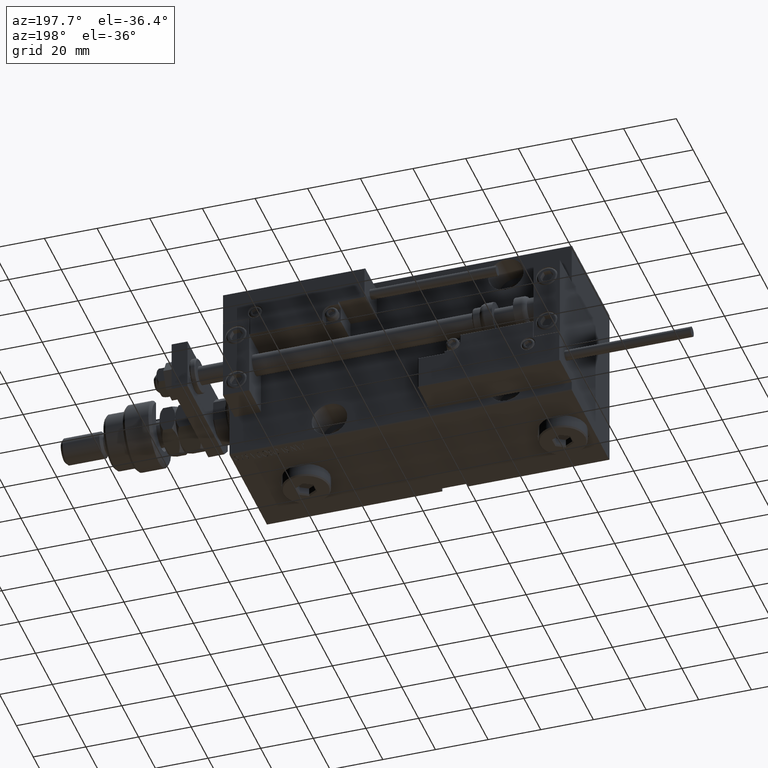
[diagram: clean part render]
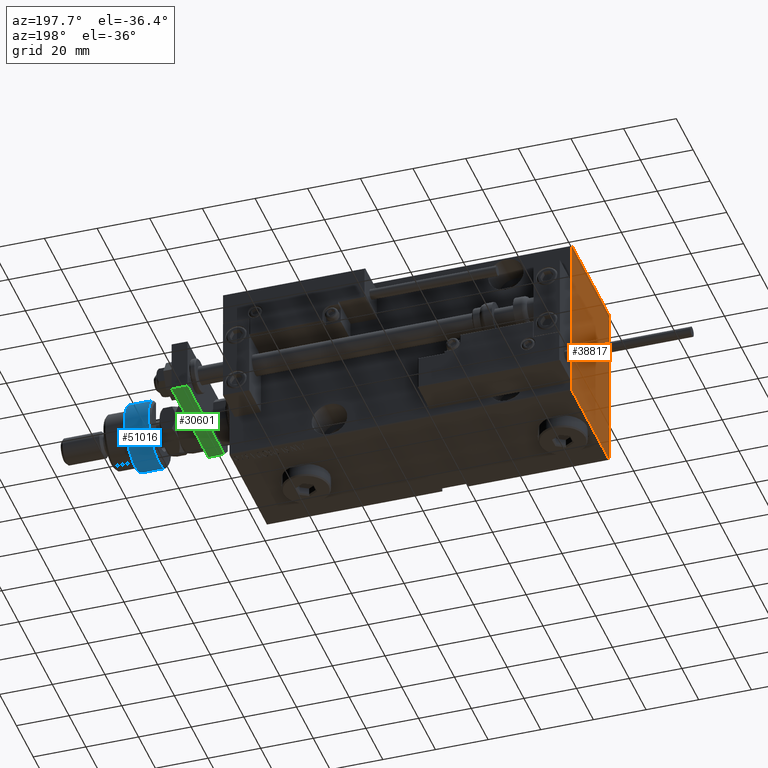
[diagram: same view with three faces highlighted in distinct colors, each labeled with its STEP entity id]
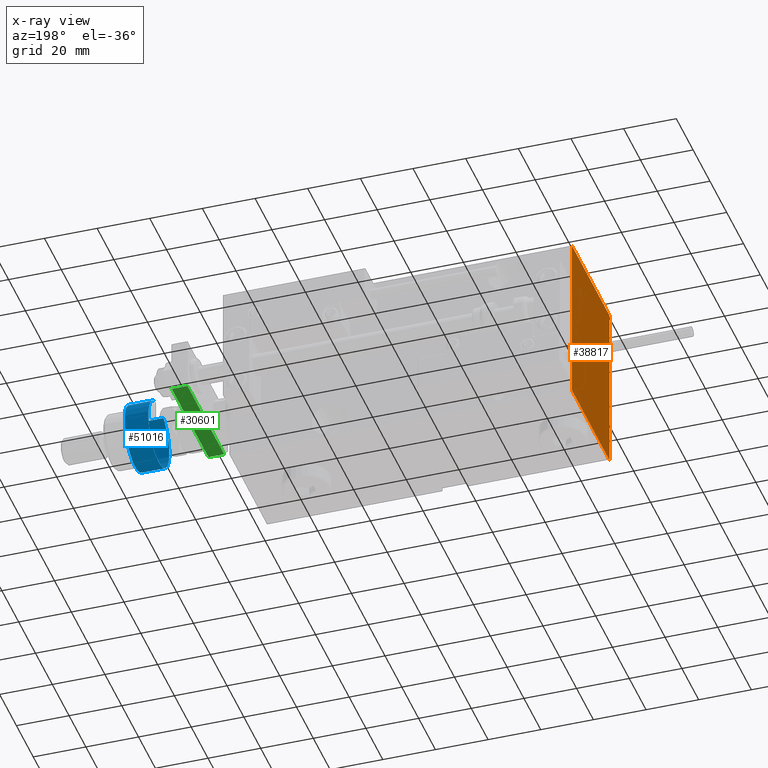
[diagram: x-ray of the same camera — body ghosted, the three highlighted faces saturated]
A machine part, auxiliary view with three faces highlighted in distinct colors.
The next image is the same camera in x-ray (body ghosted, the three faces saturated) — at least one of them is partly hidden behind the body in this view.
Their STEP definitions:

[orange] entity #38817 — the highlighted planar face has unit normal (-1, 0, 0).
#787 = EDGE_CURVE ( 'NONE', #38765, #32417, #31104, .T. ) ;
#1371 = CARTESIAN_POINT ( 'NONE',  ( 130.0000000000000000, -22.19999999999998863, -32.50000000000000000 ) ) ;
#2318 = PLANE ( 'NONE',  #48122 ) ;
#2375 = DIRECTION ( 'NONE',  ( 0.000000000000000000, -1.000000000000000000, -1.541976423090495633E-16 ) ) ;
#2853 = CARTESIAN_POINT ( 'NONE',  ( 130.0000000000000000, -22.49999999999999645, -32.19999999999999574 ) ) ;
#4008 = CARTESIAN_POINT ( 'NONE',  ( 130.0000000000000000, -22.49999999999999645, 32.20000000000001705 ) ) ;
#5311 = VECTOR ( 'NONE', #51495, 1000.000000000000000 ) ;
#5408 = CARTESIAN_POINT ( 'NONE',  ( 130.0000000000000000, -22.49999999999999645, 32.50000000000000000 ) ) ;
#5865 = VECTOR ( 'NONE', #32608, 1000.000000000000114 ) ;
#7787 = ORIENTED_EDGE ( 'NONE', *, *, #38339, .T. ) ;
#8039 = CARTESIAN_POINT ( 'NONE',  ( 130.0000000000000000, 22.49999999999999645, 32.20000000000000284 ) ) ;
#8887 = VERTEX_POINT ( 'NONE', #23152 ) ;
#8923 = LINE ( 'NONE', #50896, #40583 ) ;
#10436 = LINE ( 'NONE', #26624, #35260 ) ;
#11631 = FACE_OUTER_BOUND ( 'NONE', #26770, .T. ) ;
#13311 = DIRECTION ( 'NONE',  ( 0.000000000000000000, -1.067522139062650425E-16, 1.000000000000000000 ) ) ;
#14023 = VECTOR ( 'NONE', #47278, 1000.000000000000114 ) ;
#14766 = VERTEX_POINT ( 'NONE', #44138 ) ;
#14799 = CARTESIAN_POINT ( 'NONE',  ( 130.0000000000000000, -27.35000000000000497, 27.35000000000000497 ) ) ;
#14932 = DIRECTION ( 'NONE',  ( 0.000000000000000000, 0.000000000000000000, -1.000000000000000000 ) ) ;
#16268 = DIRECTION ( 'NONE',  ( 0.000000000000000000, 1.000000000000000000, 0.000000000000000000 ) ) ;
#16492 = CARTESIAN_POINT ( 'NONE',  ( 130.0000000000000000, 22.50000000000000355, -32.19999999999999574 ) ) ;
#16696 = CARTESIAN_POINT ( 'NONE',  ( 130.0000000000000000, -22.19999999999999929, 32.50000000000000000 ) ) ;
#18633 = EDGE_CURVE ( 'NONE', #51504, #31626, #44405, .T. ) ;
#19059 = DIRECTION ( 'NONE',  ( 1.000000000000000000, 0.000000000000000000, 0.000000000000000000 ) ) ;
#20661 = CARTESIAN_POINT ( 'NONE',  ( 130.0000000000000000, -22.49999999999999645, -32.50000000000000000 ) ) ;
#21939 = VERTEX_POINT ( 'NONE', #8039 ) ;
#23152 = CARTESIAN_POINT ( 'NONE',  ( 130.0000000000000000, 22.19999999999998863, 32.50000000000000711 ) ) ;
#23699 = CARTESIAN_POINT ( 'NONE',  ( 130.0000000000000000, 0.000000000000000000, 0.000000000000000000 ) ) ;
#26396 = ORIENTED_EDGE ( 'NONE', *, *, #48049, .T. ) ;
#26624 = CARTESIAN_POINT ( 'NONE',  ( 130.0000000000000000, 27.34999999999974207, 27.35000000000037446 ) ) ;
#26770 = EDGE_LOOP ( 'NONE', ( #40368, #26396, #34043, #43824, #30258, #51390, #7787, #28610 ) ) ;
#28610 = ORIENTED_EDGE ( 'NONE', *, *, #787, .T. ) ;
#30136 = VECTOR ( 'NONE', #54118, 1000.000000000000114 ) ;
#30258 = ORIENTED_EDGE ( 'NONE', *, *, #48811, .T. ) ;
#31104 = LINE ( 'NONE', #47823, #14023 ) ;
#31626 = VERTEX_POINT ( 'NONE', #4008 ) ;
#32284 = VERTEX_POINT ( 'NONE', #16492 ) ;
#32417 = VERTEX_POINT ( 'NONE', #1371 ) ;
#32608 = DIRECTION ( 'NONE',  ( 0.000000000000000000, -0.7071067811865474617, -0.7071067811865474617 ) ) ;
#32791 = VECTOR ( 'NONE', #2375, 1000.000000000000000 ) ;
#34043 = ORIENTED_EDGE ( 'NONE', *, *, #51840, .T. ) ;
#34479 = VECTOR ( 'NONE', #16268, 1000.000000000000000 ) ;
#35260 = VECTOR ( 'NONE', #39780, 1000.000000000000000 ) ;
#37388 = LINE ( 'NONE', #40950, #30136 ) ;
#38339 = EDGE_CURVE ( 'NONE', #31626, #38765, #47906, .T. ) ;
#38765 = VERTEX_POINT ( 'NONE', #2853 ) ;
#38817 = ADVANCED_FACE ( 'NONE', ( #11631 ), #2318, .T. ) ;
#39680 = CARTESIAN_POINT ( 'NONE',  ( 130.0000000000000000, 22.49999999999999645, 32.50000000000000711 ) ) ;
#39780 = DIRECTION ( 'NONE',  ( -0.000000000000000000, -0.7071067811865556774, 0.7071067811865393571 ) ) ;
#39948 = LINE ( 'NONE', #39680, #32791 ) ;
#40368 = ORIENTED_EDGE ( 'NONE', *, *, #48014, .T. ) ;
#40583 = VECTOR ( 'NONE', #13311, 1000.000000000000000 ) ;
#40950 = CARTESIAN_POINT ( 'NONE',  ( 130.0000000000000000, 27.34999999999999432, -27.34999999999999432 ) ) ;
#43824 = ORIENTED_EDGE ( 'NONE', *, *, #52384, .T. ) ;
#44138 = CARTESIAN_POINT ( 'NONE',  ( 130.0000000000000000, 22.19999999999998153, -32.50000000000000000 ) ) ;
#44405 = LINE ( 'NONE', #14799, #5865 ) ;
#47278 = DIRECTION ( 'NONE',  ( -0.000000000000000000, 0.7071067811865474617, -0.7071067811865474617 ) ) ;
#47823 = CARTESIAN_POINT ( 'NONE',  ( 130.0000000000000000, -27.34999999999999076, -27.34999999999999076 ) ) ;
#47906 = LINE ( 'NONE', #5408, #5311 ) ;
#48014 = EDGE_CURVE ( 'NONE', #32417, #14766, #53840, .T. ) ;
#48049 = EDGE_CURVE ( 'NONE', #14766, #32284, #37388, .T. ) ;
#48122 = AXIS2_PLACEMENT_3D ( 'NONE', #23699, #19059, #14932 ) ;
#48811 = EDGE_CURVE ( 'NONE', #8887, #51504, #39948, .T. ) ;
#50896 = CARTESIAN_POINT ( 'NONE',  ( 130.0000000000000000, 22.50000000000000355, -32.50000000000000000 ) ) ;
#51390 = ORIENTED_EDGE ( 'NONE', *, *, #18633, .T. ) ;
#51495 = DIRECTION ( 'NONE',  ( 0.000000000000000000, 0.000000000000000000, -1.000000000000000000 ) ) ;
#51504 = VERTEX_POINT ( 'NONE', #16696 ) ;
#51840 = EDGE_CURVE ( 'NONE', #32284, #21939, #8923, .T. ) ;
#52384 = EDGE_CURVE ( 'NONE', #21939, #8887, #10436, .T. ) ;
#53840 = LINE ( 'NONE', #20661, #34479 ) ;
#54118 = DIRECTION ( 'NONE',  ( -0.000000000000000000, 0.7071067811865474617, 0.7071067811865474617 ) ) ;

[blue] entity #51016 — the highlighted cylindrical surface (edge-blend (fillet) strip) has radius 12.5 mm, axis along (-1, -0, 0).
#2662 = LINE ( 'NONE', #48449, #41734 ) ;
#2785 = CARTESIAN_POINT ( 'NONE',  ( 12.50000000000000000, 0.000000000000000000, 0.9999999999999956701 ) ) ;
#3065 = ORIENTED_EDGE ( 'NONE', *, *, #27739, .T. ) ;
#4926 = AXIS2_PLACEMENT_3D ( 'NONE', #43009, #50982, #8757 ) ;
#5437 = DIRECTION ( 'NONE',  ( 1.000000000000000000, 0.000000000000000000, 0.000000000000000000 ) ) ;
#6506 = CARTESIAN_POINT ( 'NONE',  ( 0.000000000000000000, 0.000000000000000000, 0.9999999999999956701 ) ) ;
#8757 = DIRECTION ( 'NONE',  ( 1.000000000000000000, 0.000000000000000000, 0.000000000000000000 ) ) ;
#10899 = DIRECTION ( 'NONE',  ( -0.000000000000000000, -0.000000000000000000, -1.000000000000000000 ) ) ;
#11060 = LINE ( 'NONE', #35754, #13107 ) ;
#12740 = CARTESIAN_POINT ( 'NONE',  ( -11.22497216032182443, 5.500000000000000000, 0.9999999999999956701 ) ) ;
#13107 = VECTOR ( 'NONE', #48618, 1000.000000000000000 ) ;
#14552 = CIRCLE ( 'NONE', #52228, 12.50000000000000000 ) ;
#14943 = AXIS2_PLACEMENT_3D ( 'NONE', #33726, #50981, #5437 ) ;
#15050 = ORIENTED_EDGE ( 'NONE', *, *, #34737, .F. ) ;
#20044 = EDGE_CURVE ( 'NONE', #33179, #45677, #45217, .T. ) ;
#23101 = CARTESIAN_POINT ( 'NONE',  ( -11.22497216032182088, -5.500000000000007105, 0.9999999999999956701 ) ) ;
#23891 = DIRECTION ( 'NONE',  ( -0.000000000000000000, -0.000000000000000000, -1.000000000000000000 ) ) ;
#24042 = CARTESIAN_POINT ( 'NONE',  ( -11.22497216032182088, -5.500000000000007105, 10.00000000000000000 ) ) ;
#24056 = DIRECTION ( 'NONE',  ( 1.000000000000000000, 0.000000000000000000, 0.000000000000000000 ) ) ;
#25378 = EDGE_CURVE ( 'NONE', #32967, #26145, #2662, .T. ) ;
#26145 = VERTEX_POINT ( 'NONE', #23101 ) ;
#27422 = AXIS2_PLACEMENT_3D ( 'NONE', #40618, #23891, #40348 ) ;
#27739 = EDGE_CURVE ( 'NONE', #26145, #33179, #14552, .T. ) ;
#30518 = FACE_OUTER_BOUND ( 'NONE', #37073, .T. ) ;
#31333 = VERTEX_POINT ( 'NONE', #41700 ) ;
#32967 = VERTEX_POINT ( 'NONE', #24042 ) ;
#33179 = VERTEX_POINT ( 'NONE', #2785 ) ;
#33726 = CARTESIAN_POINT ( 'NONE',  ( 0.000000000000000000, 0.000000000000000000, 10.00000000000000000 ) ) ;
#34737 = EDGE_CURVE ( 'NONE', #31333, #45677, #11060, .T. ) ;
#35754 = CARTESIAN_POINT ( 'NONE',  ( -11.22497216032182443, 5.500000000000000000, 12.50000000000000000 ) ) ;
#36530 = ORIENTED_EDGE ( 'NONE', *, *, #25378, .T. ) ;
#37073 = EDGE_LOOP ( 'NONE', ( #15050, #39323, #36530, #3065, #46382 ) ) ;
#38583 = CIRCLE ( 'NONE', #14943, 12.50000000000000000 ) ;
#39323 = ORIENTED_EDGE ( 'NONE', *, *, #40446, .T. ) ;
#40348 = DIRECTION ( 'NONE',  ( -1.000000000000000000, 0.000000000000000000, 0.000000000000000000 ) ) ;
#40446 = EDGE_CURVE ( 'NONE', #31333, #32967, #38583, .T. ) ;
#40618 = CARTESIAN_POINT ( 'NONE',  ( 0.000000000000000000, 0.000000000000000000, 11.00000000000000000 ) ) ;
#41700 = CARTESIAN_POINT ( 'NONE',  ( -11.22497216032182443, 5.500000000000000000, 10.00000000000000000 ) ) ;
#41734 = VECTOR ( 'NONE', #10899, 1000.000000000000000 ) ;
#43009 = CARTESIAN_POINT ( 'NONE',  ( 0.000000000000000000, 0.000000000000000000, 0.9999999999999956701 ) ) ;
#44891 = DIRECTION ( 'NONE',  ( -0.000000000000000000, -0.000000000000000000, 1.000000000000000000 ) ) ;
#45217 = CIRCLE ( 'NONE', #4926, 12.50000000000000000 ) ;
#45677 = VERTEX_POINT ( 'NONE', #12740 ) ;
#46382 = ORIENTED_EDGE ( 'NONE', *, *, #20044, .T. ) ;
#48449 = CARTESIAN_POINT ( 'NONE',  ( -11.22497216032182088, -5.500000000000007105, 12.50000000000000000 ) ) ;
#48618 = DIRECTION ( 'NONE',  ( -0.000000000000000000, -0.000000000000000000, -1.000000000000000000 ) ) ;
#50981 = DIRECTION ( 'NONE',  ( 0.000000000000000000, 0.000000000000000000, -1.000000000000000000 ) ) ;
#50982 = DIRECTION ( 'NONE',  ( -0.000000000000000000, -0.000000000000000000, 1.000000000000000000 ) ) ;
#51016 = ADVANCED_FACE ( 'NONE', ( #30518 ), #51626, .T. ) ;
#51626 = CYLINDRICAL_SURFACE ( 'NONE', #27422, 12.50000000000000000 ) ;
#52228 = AXIS2_PLACEMENT_3D ( 'NONE', #6506, #44891, #24056 ) ;

[green] entity #30601 — the highlighted planar face has unit normal (0, -0, 1).
#308 = VECTOR ( 'NONE', #21727, 1000.000000000000000 ) ;
#3790 = DIRECTION ( 'NONE',  ( -7.228014483236695816E-17, 1.000000000000000000, 0.000000000000000000 ) ) ;
#5679 = CARTESIAN_POINT ( 'NONE',  ( 10.00000000000000533, 4.239999999999986890, 0.000000000000000000 ) ) ;
#7329 = VERTEX_POINT ( 'NONE', #30190 ) ;
#7514 = CARTESIAN_POINT ( 'NONE',  ( 10.00000000000000533, 0.000000000000000000, 0.000000000000000000 ) ) ;
#10137 = VECTOR ( 'NONE', #36328, 1000.000000000000000 ) ;
#12884 = ORIENTED_EDGE ( 'NONE', *, *, #26859, .T. ) ;
#12994 = EDGE_CURVE ( 'NONE', #43224, #46915, #41357, .T. ) ;
#15356 = ORIENTED_EDGE ( 'NONE', *, *, #46534, .T. ) ;
#18207 = AXIS2_PLACEMENT_3D ( 'NONE', #49794, #25364, #49521 ) ;
#20180 = FACE_OUTER_BOUND ( 'NONE', #36475, .T. ) ;
#21727 = DIRECTION ( 'NONE',  ( 0.000000000000000000, 0.000000000000000000, -1.000000000000000000 ) ) ;
#25364 = DIRECTION ( 'NONE',  ( -1.000000000000000000, -7.228014483236695816E-17, 0.000000000000000000 ) ) ;
#25452 = CARTESIAN_POINT ( 'NONE',  ( 10.00000000000000178, 48.00000000000000000, 6.000000000000000000 ) ) ;
#26859 = EDGE_CURVE ( 'NONE', #38215, #7329, #28371, .T. ) ;
#28371 = LINE ( 'NONE', #7514, #10137 ) ;
#29674 = VECTOR ( 'NONE', #38337, 1000.000000000000000 ) ;
#30190 = CARTESIAN_POINT ( 'NONE',  ( 10.00000000000000178, 48.00000000000000000, 0.000000000000000000 ) ) ;
#30601 = ADVANCED_FACE ( 'NONE', ( #20180 ), #32796, .F. ) ;
#32796 = PLANE ( 'NONE',  #18207 ) ;
#32834 = EDGE_CURVE ( 'NONE', #46915, #7329, #33968, .T. ) ;
#33968 = LINE ( 'NONE', #25452, #29674 ) ;
#36328 = DIRECTION ( 'NONE',  ( -7.228014483236695816E-17, 1.000000000000000000, 0.000000000000000000 ) ) ;
#36475 = EDGE_LOOP ( 'NONE', ( #41471, #15356, #12884, #48694 ) ) ;
#38215 = VERTEX_POINT ( 'NONE', #5679 ) ;
#38298 = CARTESIAN_POINT ( 'NONE',  ( 10.00000000000000178, 48.00000000000000000, 6.000000000000000000 ) ) ;
#38337 = DIRECTION ( 'NONE',  ( -0.000000000000000000, -0.000000000000000000, -1.000000000000000000 ) ) ;
#40812 = CARTESIAN_POINT ( 'NONE',  ( 10.00000000000000533, 0.000000000000000000, 6.000000000000000000 ) ) ;
#41357 = LINE ( 'NONE', #40812, #52974 ) ;
#41471 = ORIENTED_EDGE ( 'NONE', *, *, #12994, .F. ) ;
#42007 = LINE ( 'NONE', #46121, #308 ) ;
#43224 = VERTEX_POINT ( 'NONE', #46491 ) ;
#46121 = CARTESIAN_POINT ( 'NONE',  ( 10.00000000000000533, 4.239999999999986890, 6.000000000000000000 ) ) ;
#46491 = CARTESIAN_POINT ( 'NONE',  ( 10.00000000000000533, 4.239999999999986890, 6.000000000000000000 ) ) ;
#46534 = EDGE_CURVE ( 'NONE', #43224, #38215, #42007, .T. ) ;
#46915 = VERTEX_POINT ( 'NONE', #38298 ) ;
#48694 = ORIENTED_EDGE ( 'NONE', *, *, #32834, .F. ) ;
#49521 = DIRECTION ( 'NONE',  ( 7.228014483236695816E-17, -1.000000000000000000, 0.000000000000000000 ) ) ;
#49794 = CARTESIAN_POINT ( 'NONE',  ( 10.00000000000000533, 0.000000000000000000, 6.000000000000000000 ) ) ;
#52974 = VECTOR ( 'NONE', #3790, 1000.000000000000000 ) ;